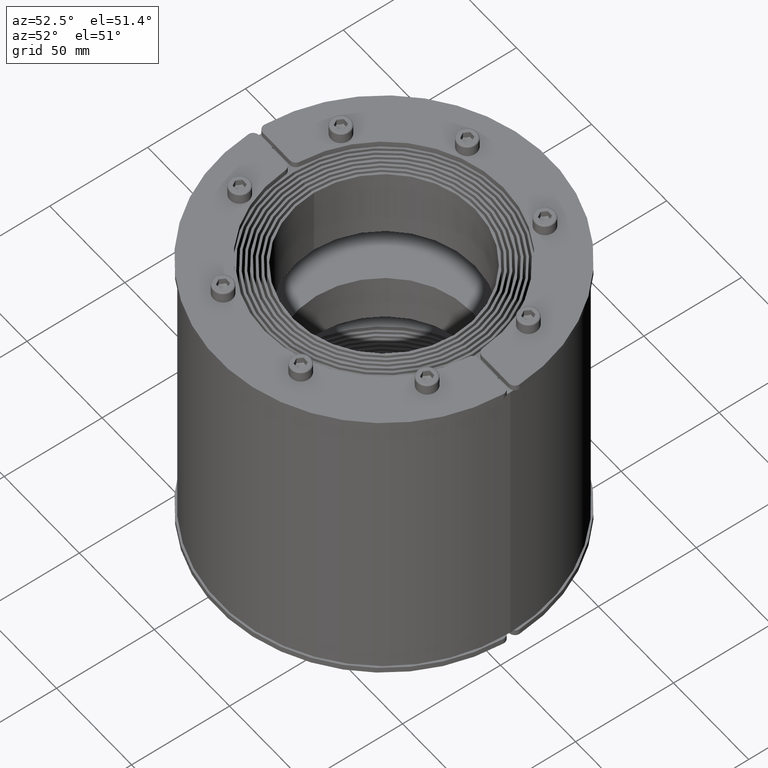
[diagram: clean part render]
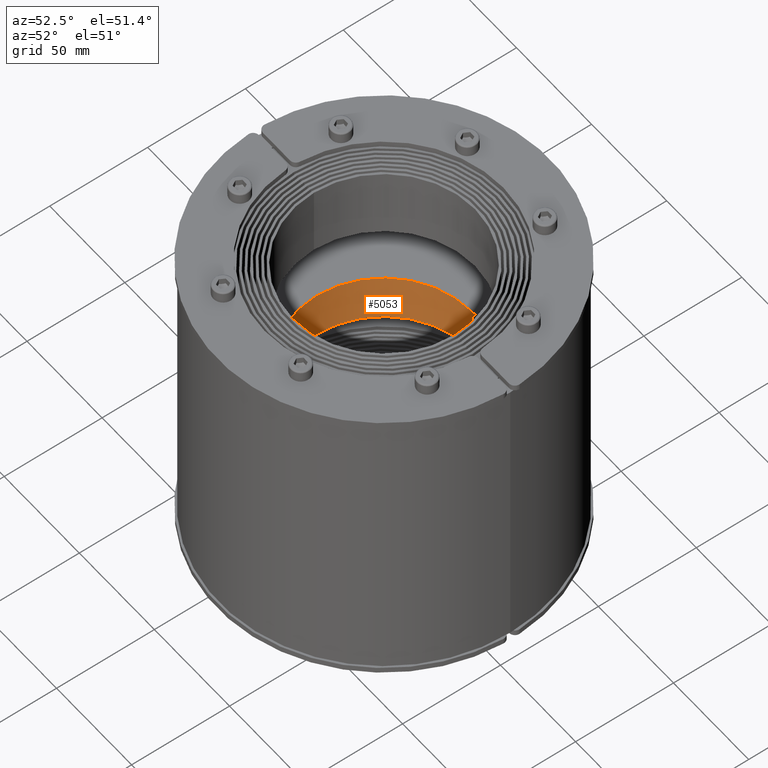
[diagram: same view with one face highlighted and labeled with its STEP entity id]
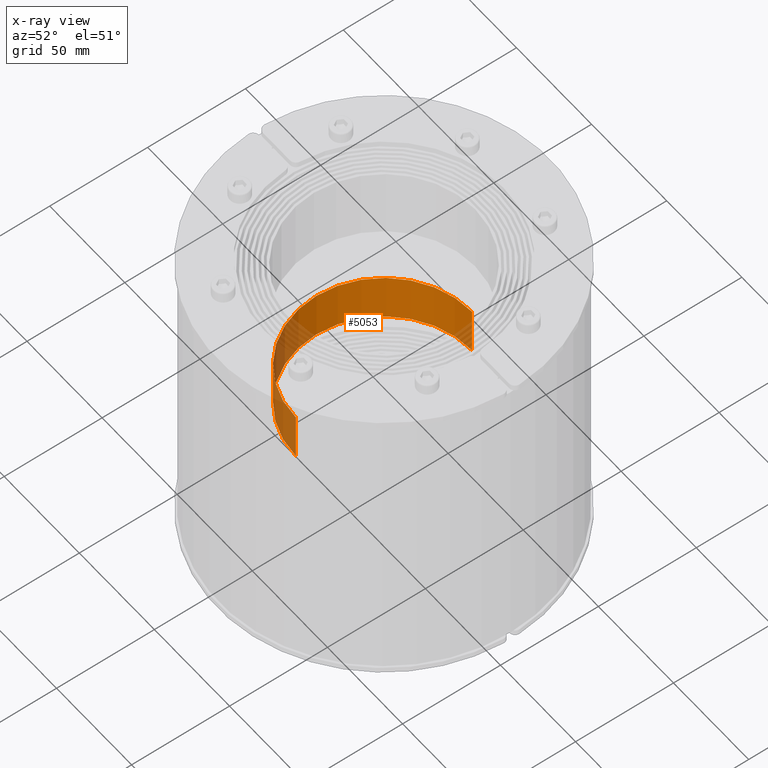
[diagram: x-ray of the same camera — body ghosted, the highlighted face saturated]
A machine part, auxiliary view. The second image highlights one B-rep face of the part: STEP entity #5053.
The next image is the same camera in x-ray: the body ghosted, the highlighted face saturated — about 26% of this face is hidden behind the body in this view.
In plain terms, the highlighted cylindrical surface (partial cylindrical patch) has radius 45 mm, axis along (-0, 0, 1).
Its self-contained STEP definition (entity closure, byte-faithful):
#4927=CARTESIAN_POINT('',(0.0,45.0,-12.500000000000000));
#4928=VERTEX_POINT('',#4927);
#4929=CARTESIAN_POINT('',(0.0,45.0,12.500000000000000));
#4930=VERTEX_POINT('',#4929);
#4931=CARTESIAN_POINT('',(0.0,45.0,-12.500000000000000));
#4932=DIRECTION('',(0.0,0.0,1.0));
#4933=VECTOR('',#4932,25.0);
#4934=LINE('',#4931,#4933);
#4935=EDGE_CURVE('',#4928,#4930,#4934,.T.);
#4937=CARTESIAN_POINT('',(-5.510729E-015,-45.0,-12.500000000000000));
#4938=VERTEX_POINT('',#4937);
#4946=CARTESIAN_POINT('',(-5.510729E-015,-45.0,12.500000000000000));
#4947=VERTEX_POINT('',#4946);
#4948=CARTESIAN_POINT('',(-5.510729E-015,-45.0,12.500000000000000));
#4949=DIRECTION('',(0.0,0.0,-1.0));
#4950=VECTOR('',#4949,25.0);
#4951=LINE('',#4948,#4950);
#4952=EDGE_CURVE('',#4947,#4938,#4951,.T.);
#5030=CARTESIAN_POINT('',(0.0,0.0,-12.500000000000000));
#5031=DIRECTION('',(0.0,0.0,1.0));
#5032=DIRECTION('',(0.0,1.0,0.0));
#5033=AXIS2_PLACEMENT_3D('',#5030,#5031,#5032);
#5034=CYLINDRICAL_SURFACE('',#5033,45.0);
#5035=ORIENTED_EDGE('',*,*,#4935,.T.);
#5036=CARTESIAN_POINT('',(0.0,0.0,12.500000000000000));
#5037=DIRECTION('',(0.0,0.0,1.0));
#5038=DIRECTION('',(0.0,1.0,0.0));
#5039=AXIS2_PLACEMENT_3D('',#5036,#5037,#5038);
#5040=CIRCLE('',#5039,45.0);
#5041=EDGE_CURVE('',#4930,#4947,#5040,.T.);
#5042=ORIENTED_EDGE('',*,*,#5041,.T.);
#5043=ORIENTED_EDGE('',*,*,#4952,.T.);
#5044=CARTESIAN_POINT('',(0.0,0.0,-12.500000000000000));
#5045=DIRECTION('',(0.0,0.0,-1.0));
#5046=DIRECTION('',(0.0,1.0,0.0));
#5047=AXIS2_PLACEMENT_3D('',#5044,#5045,#5046);
#5048=CIRCLE('',#5047,45.0);
#5049=EDGE_CURVE('',#4938,#4928,#5048,.T.);
#5050=ORIENTED_EDGE('',*,*,#5049,.T.);
#5051=EDGE_LOOP('',(#5035,#5042,#5043,#5050));
#5052=FACE_OUTER_BOUND('',#5051,.T.);
#5053=ADVANCED_FACE('',(#5052),#5034,.F.);